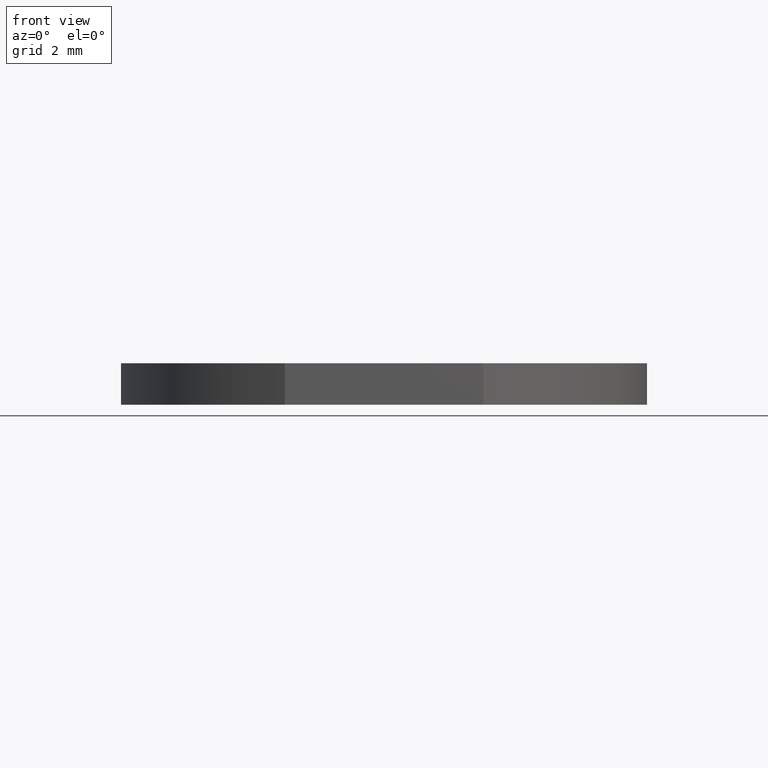
[diagram: clean part render]
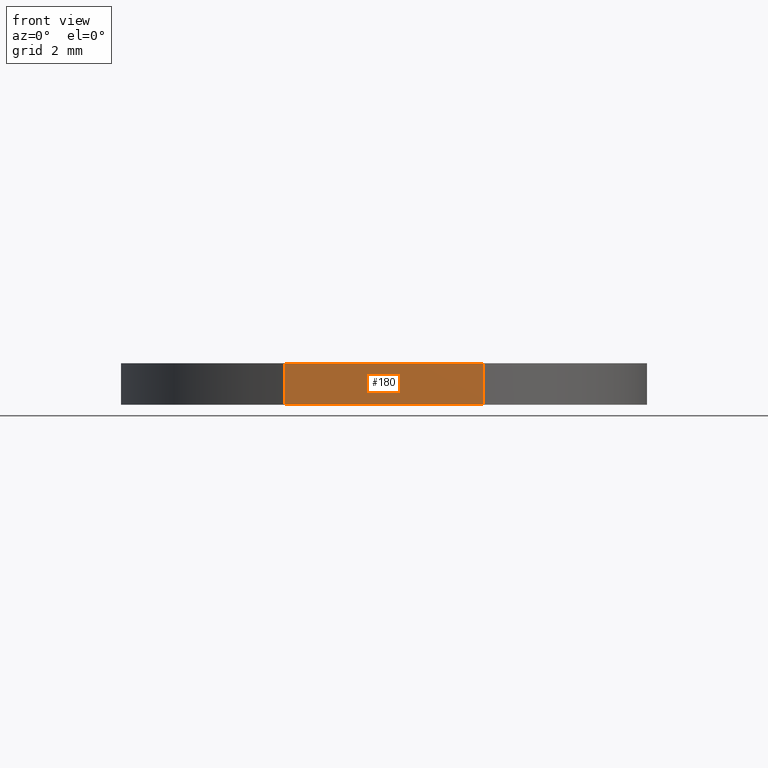
[diagram: same view with one face highlighted and labeled with its STEP entity id]
A machine part, front view. The second image highlights one B-rep face of the part: STEP entity #180.
In plain terms, the highlighted planar face has unit normal (-0, 1, 0).
Its self-contained STEP definition (entity closure, byte-faithful):
#2 = LINE ( 'NONE', #179, #77 ) ;
#16 = VECTOR ( 'NONE', #127, 1000.000000000000000 ) ;
#17 = CARTESIAN_POINT ( 'NONE',  ( -2.397519551536545723, -5.879999999999999893, 1.000000000000000000 ) ) ;
#20 = DIRECTION ( 'NONE',  ( -0.0000000000000000000, -0.0000000000000000000, -1.000000000000000000 ) ) ;
#21 = DIRECTION ( 'NONE',  ( 0.0000000000000000000, 0.0000000000000000000, 1.000000000000000000 ) ) ;
#30 = CARTESIAN_POINT ( 'NONE',  ( 0.0000000000000000000, -5.879999999999999893, 0.0000000000000000000 ) ) ;
#47 = EDGE_CURVE ( 'NONE', #115, #185, #67, .T. ) ;
#51 = ORIENTED_EDGE ( 'NONE', *, *, #162, .F. ) ;
#54 = DIRECTION ( 'NONE',  ( -1.000000000000000000, -0.0000000000000000000, 0.0000000000000000000 ) ) ;
#60 = CARTESIAN_POINT ( 'NONE',  ( 2.397519551536546167, -5.879999999999999893, 1.000000000000000000 ) ) ;
#62 = ORIENTED_EDGE ( 'NONE', *, *, #157, .T. ) ;
#65 = EDGE_LOOP ( 'NONE', ( #62, #156, #184, #51 ) ) ;
#67 = LINE ( 'NONE', #30, #93 ) ;
#73 = CARTESIAN_POINT ( 'NONE',  ( -5.887338073691013918, -5.879999999999999893, 0.0000000000000000000 ) ) ;
#77 = VECTOR ( 'NONE', #20, 1000.000000000000000 ) ;
#90 = DIRECTION ( 'NONE',  ( -0.0000000000000000000, 1.000000000000000000, 0.0000000000000000000 ) ) ;
#92 = CARTESIAN_POINT ( 'NONE',  ( -2.397519551536545723, -5.879999999999999893, 0.0000000000000000000 ) ) ;
#93 = VECTOR ( 'NONE', #54, 1000.000000000000000 ) ;
#109 = PLANE ( 'NONE',  #183 ) ;
#113 = VECTOR ( 'NONE', #21, 1000.000000000000000 ) ;
#115 = VERTEX_POINT ( 'NONE', #174 ) ;
#123 = CARTESIAN_POINT ( 'NONE',  ( -5.887338073691013918, -5.879999999999999893, 1.000000000000000000 ) ) ;
#124 = FACE_OUTER_BOUND ( 'NONE', #65, .T. ) ;
#127 = DIRECTION ( 'NONE',  ( -1.000000000000000000, -0.0000000000000000000, -0.0000000000000000000 ) ) ;
#143 = DIRECTION ( 'NONE',  ( 0.0000000000000000000, -0.0000000000000000000, 1.000000000000000000 ) ) ;
#150 = VERTEX_POINT ( 'NONE', #60 ) ;
#151 = EDGE_CURVE ( 'NONE', #185, #163, #160, .T. ) ;
#156 = ORIENTED_EDGE ( 'NONE', *, *, #151, .F. ) ;
#157 = EDGE_CURVE ( 'NONE', #150, #163, #198, .T. ) ;
#160 = LINE ( 'NONE', #17, #113 ) ;
#162 = EDGE_CURVE ( 'NONE', #150, #115, #2, .T. ) ;
#163 = VERTEX_POINT ( 'NONE', #195 ) ;
#174 = CARTESIAN_POINT ( 'NONE',  ( 2.397519551536546167, -5.879999999999999893, 0.0000000000000000000 ) ) ;
#179 = CARTESIAN_POINT ( 'NONE',  ( 2.397519551536545723, -5.879999999999999893, 1.000000000000000000 ) ) ;
#180 = ADVANCED_FACE ( 'NONE', ( #124 ), #109, .F. ) ;
#183 = AXIS2_PLACEMENT_3D ( 'NONE', #73, #90, #143 ) ;
#184 = ORIENTED_EDGE ( 'NONE', *, *, #47, .F. ) ;
#185 = VERTEX_POINT ( 'NONE', #92 ) ;
#195 = CARTESIAN_POINT ( 'NONE',  ( -2.397519551536545723, -5.879999999999999893, 1.000000000000000000 ) ) ;
#198 = LINE ( 'NONE', #123, #16 ) ;